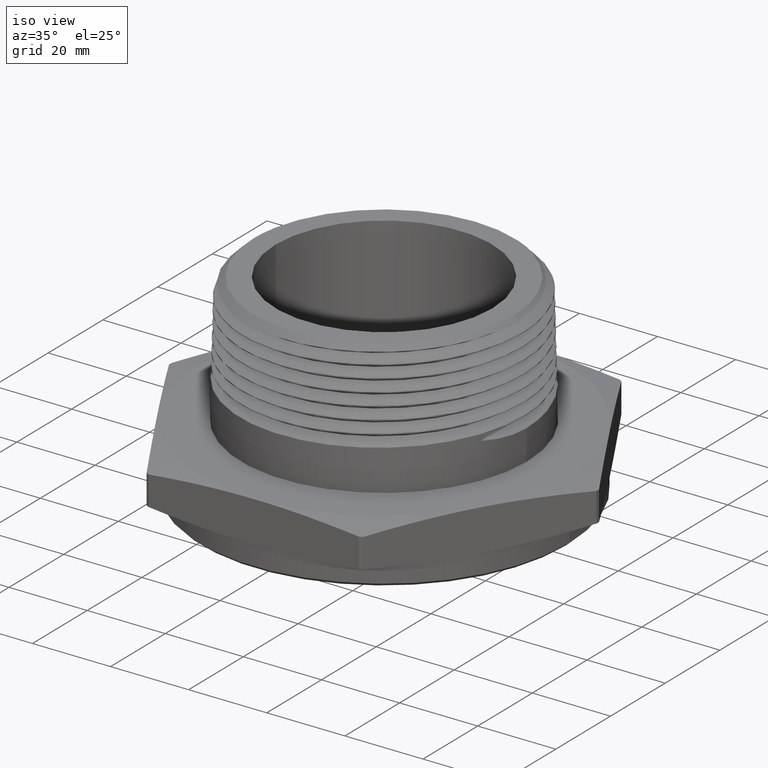
[diagram: clean part render]
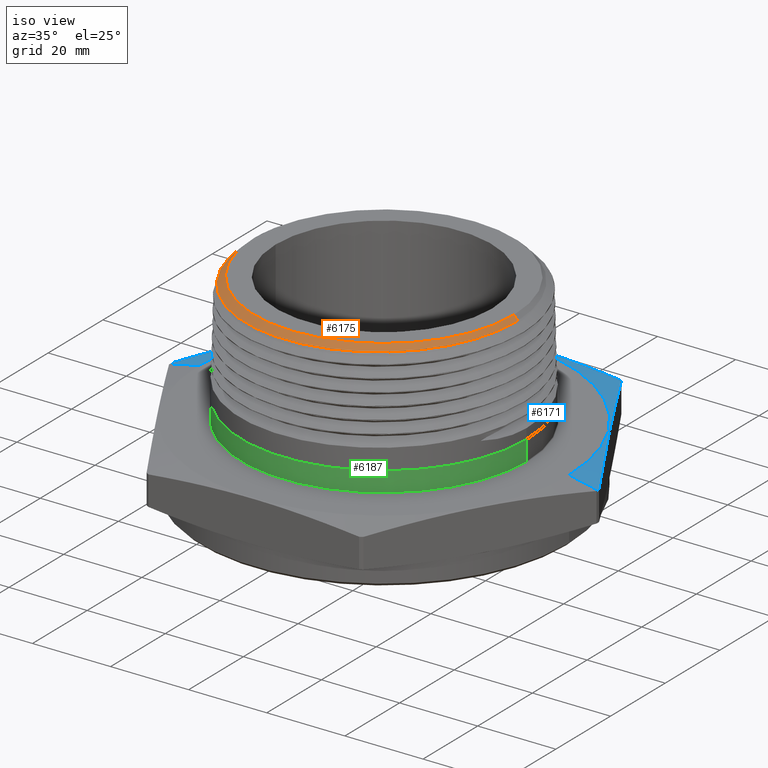
[diagram: same view with three faces highlighted in distinct colors, each labeled with its STEP entity id]
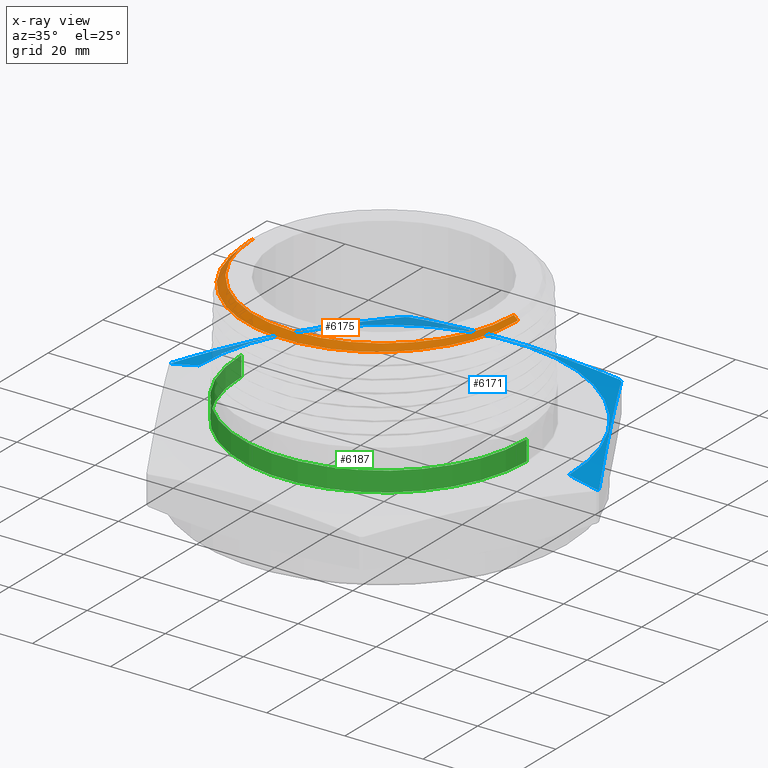
[diagram: x-ray of the same camera — body ghosted, the three highlighted faces saturated]
A machine part, iso view with three faces highlighted in distinct colors.
The next image is the same camera in x-ray (body ghosted, the three faces saturated) — at least one of them is partly hidden behind the body in this view.
Their STEP definitions:

[orange] entity #6175 — the highlighted conical surface has half-angle 45 deg.
#743 = VERTEX_POINT ( 'NONE', #1932 ) ;
#829 = B_SPLINE_CURVE_WITH_KNOTS ( 'NONE', 3,
 ( #6487, #6489, #5280, #5281, #5282, #5283, #5284, #5285, #5286, #5287, #5288, #5289, #5290, #5291, #5292, #5293, #5294, #5295, #5296, #5297, #5298, #5299, #5300, #5301, #5302, #5303, #5304, #5305, #5306, #5307, #5308, #5309, #5310, #5311, #5312, #5313, #5314, #5315, #5316, #5317, #5318, #5319, #5320, #5321, #5322, #5323, #5324, #5325, #5326, #5327, #5328, #5329, #5330, #5331, #5332, #5333, #5334, #5335, #5336, #5337, #5338, #5339, #5340, #5341, #5342, #5343, #5344, #5345 ),
 .UNSPECIFIED., .F., .F.,
 ( 4, 2, 2, 2, 2, 2, 2, 2, 2, 2, 2, 2, 2, 2, 2, 2, 2, 2, 2, 2, 2, 2, 2, 2, 2, 2, 2, 2, 2, 2, 2, 2, 2, 4 ),
 ( 0.05902998392679064500, 0.06246717431900992300, 0.06590436471122920700, 0.06934155510344847100, 0.07106015029955811700, 0.07277874549566774900, 0.07965312628010630400, 0.08137172147621593600, 0.08309031667232558100, 0.08652750706454483100, 0.09340188784898338600, 0.09512048304509301800, 0.09683907824120265000, 0.1002762686334219300, 0.1037134590256411900, 0.1054320542217508400, 0.1071506494178604600, 0.1140250302022990100, 0.1174622205945182700, 0.1191808157906278900, 0.1208994109867375400, 0.1277737917711760700, 0.1294923869672857100, 0.1312109821633953600, 0.1346481725556146200, 0.1415225533400531800, 0.1432411485361628200, 0.1449597437322724700, 0.1483969341244917300, 0.1518341245167109900, 0.1552713149089302600, 0.1621456956933688100, 0.1655828860855880500, 0.1690200764778073400 ),
 .UNSPECIFIED. ) ;
#830 = B_SPLINE_CURVE_WITH_KNOTS ( 'NONE', 3,
 ( #5346, #5349, #5350, #5351 ),
 .UNSPECIFIED., .F., .F.,
 ( 4, 4 ),
 ( 4.049752731053163400E-017, 0.005450625266921482100 ),
 .UNSPECIFIED. ) ;
#1410 = CARTESIAN_POINT ( 'NONE',  ( 1.543675872082448200, 1.890457715666769000E-016, 1.496089127917554300 ) ) ;
#1411 = DIRECTION ( 'NONE',  ( 0.7071067811865512400, 8.659560562354978500E-017, -0.7071067811865438000 ) ) ;
#1415 = CARTESIAN_POINT ( 'NONE',  ( -1.311341127017492200, -0.07127014641024455300, 1.728423872982507900 ) ) ;
#1419 = CARTESIAN_POINT ( 'NONE',  ( -1.311368873181038200, -1.536664496436148200E-016, 1.728396126818961800 ) ) ;
#1422 = CARTESIAN_POINT ( 'NONE',  ( -1.305487503946313400, -0.1425690853686925300, 1.728457413659185500 ) ) ;
#1423 = CARTESIAN_POINT ( 'NONE',  ( -1.293868333705549400, -0.2130032852517474400, 1.728481024465422300 ) ) ;
#1426 = DIRECTION ( 'NONE',  ( -0.7071067811865512400, 0.0000000000000000000, -0.7071067811865438000 ) ) ;
#1431 = CARTESIAN_POINT ( 'NONE',  ( -1.543675872082448200, 0.0000000000000000000, 1.496089127917554300 ) ) ;
#1441 = CARTESIAN_POINT ( 'NONE',  ( 0.0000000000000000000, 0.0000000000000000000, 1.729999999999999800 ) ) ;
#1442 = DIRECTION ( 'NONE',  ( -0.0000000000000000000, -0.0000000000000000000, -1.000000000000000000 ) ) ;
#1443 = DIRECTION ( 'NONE',  ( -1.000000000000000000, 0.0000000000000000000, 0.0000000000000000000 ) ) ;
#1511 = CARTESIAN_POINT ( 'NONE',  ( 1.309765000000000100, 1.653900943077713700E-016, 1.729999999999999800 ) ) ;
#1516 = CARTESIAN_POINT ( 'NONE',  ( -1.293868333705549400, -0.2130032852517474400, 1.728481024465422300 ) ) ;
#1517 = CARTESIAN_POINT ( 'NONE',  ( -1.309765000000000100, 0.0000000000000000000, 1.729999999999999800 ) ) ;
#1551 = CARTESIAN_POINT ( 'NONE',  ( 1.350563691224693400, 3.244069492476312400E-016, 1.689201308775306200 ) ) ;
#1932 = CARTESIAN_POINT ( 'NONE',  ( -1.311368873181038200, -1.536664496436148200E-016, 1.728396126818961800 ) ) ;
#1977 = LINE ( 'NONE', #5279, #1979 ) ;
#1979 = VECTOR ( 'NONE', #5278, 39.37007874015748100 ) ;
#2051 = LINE ( 'NONE', #1410, #2053 ) ;
#2053 = VECTOR ( 'NONE', #1411, 39.37007874015748100 ) ;
#2061 = LINE ( 'NONE', #1431, #2063 ) ;
#2063 = VECTOR ( 'NONE', #1426, 39.37007874015748100 ) ;
#2064 = CIRCLE ( 'NONE', #5657, 1.309765000000000100 ) ;
#2650 = FACE_OUTER_BOUND ( 'NONE', #6842, .T. ) ;
#2657 = CONICAL_SURFACE ( 'NONE', #5577, 1.543675872082448200, 0.7853981633974536100 ) ;
#4867 = VERTEX_POINT ( 'NONE', #6735 ) ;
#4868 = VERTEX_POINT ( 'NONE', #6736 ) ;
#5278 = DIRECTION ( 'NONE',  ( -0.7071067811865512400, 0.0000000000000000000, -0.7071067811865438000 ) ) ;
#5279 = CARTESIAN_POINT ( 'NONE',  ( -1.543675872082448200, 0.0000000000000000000, 1.496089127917554300 ) ) ;
#5280 = CARTESIAN_POINT ( 'NONE',  ( -1.387721829035604600, -0.09044665519323419300, 1.649825558905477100 ) ) ;
#5281 = CARTESIAN_POINT ( 'NONE',  ( -1.378153086283493200, -0.1798469589385528500, 1.650653760550562000 ) ) ;
#5282 = CARTESIAN_POINT ( 'NONE',  ( -1.371226199127554500, -0.2241300008257051400, 1.651064432636748100 ) ) ;
#5283 = CARTESIAN_POINT ( 'NONE',  ( -1.353122640601031300, -0.3118686214614841400, 1.651890136436830800 ) ) ;
#5284 = CARTESIAN_POINT ( 'NONE',  ( -1.341945750210226800, -0.3553241546887012700, 1.652305473547522700 ) ) ;
#5285 = CARTESIAN_POINT ( 'NONE',  ( -1.321939744358964200, -0.4198764975665205700, 1.652929201335512800 ) ) ;
#5286 = CARTESIAN_POINT ( 'NONE',  ( -1.314710758866098500, -0.4413396231853181600, 1.653137845617973100 ) ) ;
#5287 = CARTESIAN_POINT ( 'NONE',  ( -1.299246640085977000, -0.4837865662436233700, 1.653553942386309500 ) ) ;
#5288 = CARTESIAN_POINT ( 'NONE',  ( -1.291026264885725800, -0.5047391586572285100, 1.653761083759974300 ) ) ;
#5289 = CARTESIAN_POINT ( 'NONE',  ( -1.247525987655243400, -0.6081716279879735300, 1.654796930411750900 ) ) ;
#5290 = CARTESIAN_POINT ( 'NONE',  ( -1.205123892175791000, -0.6867006030434359400, 1.655619034298606600 ) ) ;
#5291 = CARTESIAN_POINT ( 'NONE',  ( -1.142669027500451600, -0.7796181956014405200, 1.656654119190884800 ) ) ;
#5292 = CARTESIAN_POINT ( 'NONE',  ( -1.129700608824985000, -0.7979368432874045500, 1.656862279552493700 ) ) ;
#5293 = CARTESIAN_POINT ( 'NONE',  ( -1.102794159378583700, -0.8340362399010008400, 1.657280037986371000 ) ) ;
#5294 = CARTESIAN_POINT ( 'NONE',  ( -1.088816396089312900, -0.8518641257720821500, 1.657490174772445100 ) ) ;
#5295 = CARTESIAN_POINT ( 'NONE',  ( -1.045717970022937800, -0.9041363560018240700, 1.658117845252012400 ) ) ;
#5296 = CARTESIAN_POINT ( 'NONE',  ( -1.015503016456007500, -0.9373139882466530200, 1.658531384144530600 ) ) ;
#5297 = CARTESIAN_POINT ( 'NONE',  ( -0.9205371741397651000, -1.031978224888733500, 1.659773189909072200 ) ) ;
#5298 = CARTESIAN_POINT ( 'NONE',  ( -0.8515078699465396000, -1.088644176189931700, 1.660599383292347600 ) ) ;
#5299 = CARTESIAN_POINT ( 'NONE',  ( -0.7578971347747651700, -1.151224053181517400, 1.661643901281008000 ) ) ;
#5300 = CARTESIAN_POINT ( 'NONE',  ( -0.7387498946063230100, -1.163354886694823100, 1.661854821974321200 ) ) ;
#5301 = CARTESIAN_POINT ( 'NONE',  ( -0.7000278837805296000, -1.186570065322752000, 1.662275247762450300 ) ) ;
#5302 = CARTESIAN_POINT ( 'NONE',  ( -0.6804549385742210100, -1.197658240626131600, 1.662484694941909400 ) ) ;
#5303 = CARTESIAN_POINT ( 'NONE',  ( -0.6211123099322427600, -1.229394004553222300, 1.663110527844584800 ) ) ;
#5304 = CARTESIAN_POINT ( 'NONE',  ( -0.5807204606353515400, -1.248516830354166900, 1.663523951170077900 ) ) ;
#5305 = CARTESIAN_POINT ( 'NONE',  ( -0.4982993944568727100, -1.282749475752895200, 1.664353280016943400 ) ) ;
#5306 = CARTESIAN_POINT ( 'NONE',  ( -0.4562697048021590000, -1.297858105400782100, 1.664770448555606700 ) ) ;
#5307 = CARTESIAN_POINT ( 'NONE',  ( -0.3919822672765918000, -1.317474866540374200, 1.665396708881631000 ) ) ;
#5308 = CARTESIAN_POINT ( 'NONE',  ( -0.3703455784915140000, -1.323505125977710900, 1.665605624429131300 ) ) ;
#5309 = CARTESIAN_POINT ( 'NONE',  ( -0.3266496668449838100, -1.334530049106501300, 1.666024565896827600 ) ) ;
#5310 = CARTESIAN_POINT ( 'NONE',  ( -0.3045309002623418600, -1.339535049554544600, 1.666235152927744800 ) ) ;
#5311 = CARTESIAN_POINT ( 'NONE',  ( -0.1939231631433637200, -1.361704088593232800, 1.667285280778870900 ) ) ;
#5312 = CARTESIAN_POINT ( 'NONE',  ( -0.1050013554721083800, -1.370538356599322800, 1.668116787441824100 ) ) ;
#5313 = CARTESIAN_POINT ( 'NONE',  ( 0.02901599900098430700, -1.370819238169880700, 1.669366572973047400 ) ) ;
#5314 = CARTESIAN_POINT ( 'NONE',  ( 0.07379511447116307600, -1.368732305220951900, 1.669786793038871500 ) ) ;
#5315 = CARTESIAN_POINT ( 'NONE',  ( 0.1411282557002829000, -1.362240277797694300, 1.670419400697314300 ) ) ;
#5316 = CARTESIAN_POINT ( 'NONE',  ( 0.1636457449541972900, -1.359505732146051100, 1.670631153200059500 ) ) ;
#5317 = CARTESIAN_POINT ( 'NONE',  ( 0.2082605675109904200, -1.352963933619914000, 1.671051883773706500 ) ) ;
#5318 = CARTESIAN_POINT ( 'NONE',  ( 0.2304074174881110500, -1.349154188068959700, 1.671261328031110400 ) ) ;
#5319 = CARTESIAN_POINT ( 'NONE',  ( 0.3403516800478649800, -1.327454393807255400, 1.672308376429769300 ) ) ;
#5320 = CARTESIAN_POINT ( 'NONE',  ( 0.4258028158763752500, -1.301690510375755400, 1.673141857543789500 ) ) ;
#5321 = CARTESIAN_POINT ( 'NONE',  ( 0.5294763879868297200, -1.258947449370696000, 1.674191507788595200 ) ) ;
#5322 = CARTESIAN_POINT ( 'NONE',  ( 0.5500524182851402900, -1.249866361530422600, 1.674402677545394000 ) ) ;
#5323 = CARTESIAN_POINT ( 'NONE',  ( 0.5908812834332529700, -1.230619658576099600, 1.674826861395288100 ) ) ;
#5324 = CARTESIAN_POINT ( 'NONE',  ( 0.6111447784805808000, -1.220444190677048000, 1.675039926920598400 ) ) ;
#5325 = CARTESIAN_POINT ( 'NONE',  ( 0.6707701583785139500, -1.188629791773518900, 1.675674227234756500 ) ) ;
#5326 = CARTESIAN_POINT ( 'NONE',  ( 0.7092010631181647800, -1.165603297378965000, 1.676092484723461100 ) ) ;
#5327 = CARTESIAN_POINT ( 'NONE',  ( 0.8206293516606149000, -1.091202300308759600, 1.677349083499454200 ) ) ;
#5328 = CARTESIAN_POINT ( 'NONE',  ( 0.8898017566130015400, -1.034560564492334600, 1.678186767698253400 ) ) ;
#5329 = CARTESIAN_POINT ( 'NONE',  ( 0.9696380457669271400, -0.9546298024918663500, 1.679248357583564600 ) ) ;
#5330 = CARTESIAN_POINT ( 'NONE',  ( 0.9852348774771584300, -0.9382129070840552500, 1.679461820166213900 ) ) ;
#5331 = CARTESIAN_POINT ( 'NONE',  ( 1.015418914105367100, -0.9048208241694952700, 1.679886397615560900 ) ) ;
#5332 = CARTESIAN_POINT ( 'NONE',  ( 1.030047560698469600, -0.8878048922487474800, 1.680098007521708900 ) ) ;
#5333 = CARTESIAN_POINT ( 'NONE',  ( 1.072565351002415600, -0.8358125868606989300, 1.680730630214287000 ) ) ;
#5334 = CARTESIAN_POINT ( 'NONE',  ( 1.099090009909521500, -0.7998942281509167100, 1.681148960154275500 ) ) ;
#5335 = CARTESIAN_POINT ( 'NONE',  ( 1.148523734250067400, -0.7255615774423684900, 1.681989507361252500 ) ) ;
#5336 = CARTESIAN_POINT ( 'NONE',  ( 1.171432098796662900, -0.6871468127884823300, 1.682412697359949400 ) ) ;
#5337 = CARTESIAN_POINT ( 'NONE',  ( 1.213562919861160200, -0.6077727826755338100, 1.683260637718465800 ) ) ;
#5338 = CARTESIAN_POINT ( 'NONE',  ( 1.232853079496149400, -0.5666054633063553100, 1.683687311909806400 ) ) ;
#5339 = CARTESIAN_POINT ( 'NONE',  ( 1.283917452465988900, -0.4417456026258952400, 1.684960172711855900 ) ) ;
#5340 = CARTESIAN_POINT ( 'NONE',  ( 1.309343807456777800, -0.3561608872497297200, 1.685800504923153000 ) ) ;
#5341 = CARTESIAN_POINT ( 'NONE',  ( 1.334717783095752800, -0.2243101566284905500, 1.687070051229979000 ) ) ;
#5342 = CARTESIAN_POINT ( 'NONE',  ( 1.341037897431066600, -0.1796915918156798700, 1.687497994484066700 ) ) ;
#5343 = CARTESIAN_POINT ( 'NONE',  ( 1.349195330125807100, -0.08959822246489143600, 1.688354542739291400 ) ) ;
#5344 = CARTESIAN_POINT ( 'NONE',  ( 1.350987489651167100, -0.04471828386469470900, 1.688777510348832500 ) ) ;
#5345 = CARTESIAN_POINT ( 'NONE',  ( 1.350563691224693400, 3.244069492476312400E-016, 1.689201308775306200 ) ) ;
#5346 = CARTESIAN_POINT ( 'NONE',  ( -1.293868333705549400, -0.2130032852517474400, 1.728481024465422300 ) ) ;
#5349 = CARTESIAN_POINT ( 'NONE',  ( -1.308027092260372100, -0.1426472211811488400, 1.725938862266765100 ) ) ;
#5350 = CARTESIAN_POINT ( 'NONE',  ( -1.316329021951404800, -0.07164274502372786100, 1.723435978048595300 ) ) ;
#5351 = CARTESIAN_POINT ( 'NONE',  ( -1.318848115848336700, -6.606837979511626700E-015, 1.720916884151662900 ) ) ;
#5577 = AXIS2_PLACEMENT_3D ( 'NONE', #5681, #5682, #5680 ) ;
#5657 = AXIS2_PLACEMENT_3D ( 'NONE', #1441, #1442, #1443 ) ;
#5680 = DIRECTION ( 'NONE',  ( -1.000000000000000000, 0.0000000000000000000, 0.0000000000000000000 ) ) ;
#5681 = CARTESIAN_POINT ( 'NONE',  ( 0.0000000000000000000, 0.0000000000000000000, 1.496089127917554300 ) ) ;
#5682 = DIRECTION ( 'NONE',  ( -0.0000000000000000000, -0.0000000000000000000, -1.000000000000000000 ) ) ;
#6175 = ADVANCED_FACE ( 'NONE', ( #2650 ), #2657, .T. ) ;
#6487 = CARTESIAN_POINT ( 'NONE',  ( -1.390774161816868100, -8.057508279864616300E-013, 1.648990838183133100 ) ) ;
#6489 = CARTESIAN_POINT ( 'NONE',  ( -1.390358438698096900, -0.04517222760751470800, 1.649406561301878200 ) ) ;
#6545 = EDGE_CURVE ( 'NONE', #4868, #6873, #829, .T. ) ;
#6546 = EDGE_CURVE ( 'NONE', #4867, #4868, #1977, .T. ) ;
#6547 = EDGE_CURVE ( 'NONE', #6674, #4867, #830, .T. ) ;
#6627 = EDGE_CURVE ( 'NONE', #6677, #6873, #2051, .T. ) ;
#6628 = EDGE_CURVE ( 'NONE', #743, #6674, #6667, .T. ) ;
#6634 = EDGE_CURVE ( 'NONE', #6678, #743, #2061, .T. ) ;
#6636 = EDGE_CURVE ( 'NONE', #6677, #6678, #2064, .T. ) ;
#6667 = B_SPLINE_CURVE_WITH_KNOTS ( 'NONE', 3,
 ( #1419, #1415, #1422, #1423 ),
 .UNSPECIFIED., .F., .F.,
 ( 4, 4 ),
 ( 0.002746248883832942300, 0.008185843059415642500 ),
 .UNSPECIFIED. ) ;
#6674 = VERTEX_POINT ( 'NONE', #1516 ) ;
#6677 = VERTEX_POINT ( 'NONE', #1511 ) ;
#6678 = VERTEX_POINT ( 'NONE', #1517 ) ;
#6735 = CARTESIAN_POINT ( 'NONE',  ( -1.318848115848336700, -6.606837979511626700E-015, 1.720916884151662900 ) ) ;
#6736 = CARTESIAN_POINT ( 'NONE',  ( -1.390774161816868100, -8.057508279864616300E-013, 1.648990838183133100 ) ) ;
#6800 = ORIENTED_EDGE ( 'NONE', *, *, #6627, .F. ) ;
#6801 = ORIENTED_EDGE ( 'NONE', *, *, #6636, .T. ) ;
#6802 = ORIENTED_EDGE ( 'NONE', *, *, #6634, .T. ) ;
#6803 = ORIENTED_EDGE ( 'NONE', *, *, #6628, .T. ) ;
#6804 = ORIENTED_EDGE ( 'NONE', *, *, #6547, .T. ) ;
#6805 = ORIENTED_EDGE ( 'NONE', *, *, #6546, .T. ) ;
#6806 = ORIENTED_EDGE ( 'NONE', *, *, #6545, .T. ) ;
#6842 = EDGE_LOOP ( 'NONE', ( #6800, #6801, #6802, #6803, #6804, #6805, #6806 ) ) ;
#6873 = VERTEX_POINT ( 'NONE', #1551 ) ;

[blue] entity #6171 — the highlighted conical surface has half-angle 78 deg.
#2 = VERTEX_POINT ( 'NONE', #1917 ) ;
#45 = CIRCLE ( 'NONE', #5615, 2.155063509461096600 ) ;
#51 = LINE ( 'NONE', #534, #53 ) ;
#52 = LINE ( 'NONE', #6216, #59 ) ;
#53 = VECTOR ( 'NONE', #498, 39.37007874015748100 ) ;
#54 = CIRCLE ( 'NONE', #5616, 2.155063509461096600 ) ;
#55 = CIRCLE ( 'NONE', #5617, 2.155063509461096600 ) ;
#56 = CIRCLE ( 'NONE', #5618, 2.155063509461096600 ) ;
#57 = CIRCLE ( 'NONE', #5619, 1.865000000000000000 ) ;
#59 = VECTOR ( 'NONE', #6215, 39.37007874015748100 ) ;
#76 = VERTEX_POINT ( 'NONE', #1914 ) ;
#78 = VERTEX_POINT ( 'NONE', #1918 ) ;
#79 = VERTEX_POINT ( 'NONE', #1919 ) ;
#80 = VERTEX_POINT ( 'NONE', #1920 ) ;
#244 = VERTEX_POINT ( 'NONE', #1913 ) ;
#498 = DIRECTION ( 'NONE',  ( -0.9781476007338069100, 0.0000000000000000000, -0.2079116908177528500 ) ) ;
#534 = CARTESIAN_POINT ( 'NONE',  ( -1.865000000000000000, 0.0000000000000000000, 0.4199999999999999800 ) ) ;
#539 = CARTESIAN_POINT ( 'NONE',  ( -2.154992918645594300, 0.01744277495468578300, 0.3583450977630113800 ) ) ;
#540 = CARTESIAN_POINT ( 'NONE',  ( -2.066460370887299300, 0.1707856457955717100, 0.3768988438747940500 ) ) ;
#541 = CARTESIAN_POINT ( 'NONE',  ( 4.497182772172610600E-017, 0.0000000000000000000, 0.3583450977630111000 ) ) ;
#542 = DIRECTION ( 'NONE',  ( -1.254986547952384500E-016, -0.0000000000000000000, -1.000000000000000000 ) ) ;
#543 = DIRECTION ( 'NONE',  ( -1.000000000000000000, 0.0000000000000000000, 1.267641525027445500E-016 ) ) ;
#544 = CARTESIAN_POINT ( 'NONE',  ( -1.977927823129003600, 0.3241285166364571400, 0.3919305004217835700 ) ) ;
#545 = CARTESIAN_POINT ( 'NONE',  ( -1.800862727612413200, 0.6308142583182287900, 0.4124480746447293800 ) ) ;
#546 = CARTESIAN_POINT ( 'NONE',  ( -1.623797632095821600, 0.9375000000000000000, 0.4233007941218703300 ) ) ;
#547 = CARTESIAN_POINT ( 'NONE',  ( -1.446732536579231000, 1.244185741681772300, 0.4124480746447294300 ) ) ;
#548 = CARTESIAN_POINT ( 'NONE',  ( -1.269667441062640500, 1.550871483363543300, 0.3919305004217833500 ) ) ;
#549 = CARTESIAN_POINT ( 'NONE',  ( -1.181134893304345100, 1.704214354204428300, 0.3768988438747939400 ) ) ;
#550 = CARTESIAN_POINT ( 'NONE',  ( -1.092602345546049600, 1.857557225045315000, 0.3583450977630112700 ) ) ;
#551 = CARTESIAN_POINT ( 'NONE',  ( -0.8854626489026766700, 1.875000000000000000, 0.3768844703934901000 ) ) ;
#552 = CARTESIAN_POINT ( 'NONE',  ( -0.7078637763989921200, 1.875000000000000400, 0.3919653201233485600 ) ) ;
#553 = CARTESIAN_POINT ( 'NONE',  ( 4.497182772172610600E-017, 0.0000000000000000000, 0.3583450977630111000 ) ) ;
#554 = DIRECTION ( 'NONE',  ( -1.254986547952384500E-016, -0.0000000000000000000, -1.000000000000000000 ) ) ;
#555 = DIRECTION ( 'NONE',  ( -1.000000000000000000, 0.0000000000000000000, 1.267641525027445500E-016 ) ) ;
#556 = CARTESIAN_POINT ( 'NONE',  ( -1.062390573099543800, 1.875000000000000000, 0.3583450977630112700 ) ) ;
#557 = CARTESIAN_POINT ( 'NONE',  ( -0.3532018081287491800, 1.875000000000000400, 0.4124899777348193800 ) ) ;
#558 = CARTESIAN_POINT ( 'NONE',  ( -0.1759797155870145000, 1.874999999999999800, 0.4178968614425999100 ) ) ;
#559 = CARTESIAN_POINT ( 'NONE',  ( 0.1782209432946992300, 1.874999999999999600, 0.4178518649649166100 ) ) ;
#560 = CARTESIAN_POINT ( 'NONE',  ( 0.3551995481315818900, 1.875000000000000000, 0.4124017013454117600 ) ) ;
#561 = CARTESIAN_POINT ( 'NONE',  ( 0.7089408793083038500, 1.875000000000000400, 0.3918754134823977400 ) ) ;
#562 = CARTESIAN_POINT ( 'NONE',  ( 0.8857049465856076100, 1.875000000000000000, 0.3768590812580453500 ) ) ;
#563 = CARTESIAN_POINT ( 'NONE',  ( 1.062390573099543800, 1.875000000000000000, 0.3583450977630109900 ) ) ;
#564 = CARTESIAN_POINT ( 'NONE',  ( 1.092602345546049400, 1.857557225045314500, 0.3583450977630109900 ) ) ;
#565 = CARTESIAN_POINT ( 'NONE',  ( 1.181134893304344600, 1.704214354204428300, 0.3768988438747935000 ) ) ;
#566 = CARTESIAN_POINT ( 'NONE',  ( 4.497182772172610600E-017, 0.0000000000000000000, 0.3583450977630111000 ) ) ;
#567 = DIRECTION ( 'NONE',  ( -1.254986547952384500E-016, -0.0000000000000000000, -1.000000000000000000 ) ) ;
#568 = DIRECTION ( 'NONE',  ( -1.000000000000000000, 0.0000000000000000000, 1.267641525027445500E-016 ) ) ;
#570 = CARTESIAN_POINT ( 'NONE',  ( 1.269667441062640700, 1.550871483363543300, 0.3919305004217831800 ) ) ;
#571 = CARTESIAN_POINT ( 'NONE',  ( 1.446732536579231000, 1.244185741681771700, 0.4124480746447289300 ) ) ;
#572 = CARTESIAN_POINT ( 'NONE',  ( 1.623797632095821800, 0.9375000000000007800, 0.4233007941218696600 ) ) ;
#819 = B_SPLINE_CURVE_WITH_KNOTS ( 'NONE', 3,
 ( #539, #540, #544, #545, #546, #547, #548, #549, #550 ),
 .UNSPECIFIED., .F., .F.,
 ( 4, 2, 1, 2, 4 ),
 ( 1.908621089976603600E-006, 0.01349426889945418800, 0.02698662917781840000, 0.04047898945618262600, 0.05397134973454684900 ),
 .UNSPECIFIED. ) ;
#820 = B_SPLINE_CURVE_WITH_KNOTS ( 'NONE', 3,
 ( #556, #551, #552, #557, #558, #559, #560, #561, #562, #563 ),
 .UNSPECIFIED., .F., .F.,
 ( 4, 2, 2, 2, 4 ),
 ( 0.04615379191895444700, 0.05969999371754793100, 0.07324619551614142100, 0.08679239731473489800, 0.1003385991133283800 ),
 .UNSPECIFIED. ) ;
#821 = B_SPLINE_CURVE_WITH_KNOTS ( 'NONE', 3,
 ( #564, #565, #570, #571, #572, #6211, #6212, #6213, #6214 ),
 .UNSPECIFIED., .F., .F.,
 ( 4, 2, 1, 2, 4 ),
 ( 1.908621089804224700E-006, 0.01349426889945402000, 0.02698662917781823400, 0.04047898945618245300, 0.05397134973454666800 ),
 .UNSPECIFIED. ) ;
#1204 = EDGE_LOOP ( 'NONE', ( #7871, #7872, #7873, #7874, #7875, #7876, #7877, #7878, #7879, #7880 ) ) ;
#1449 = CARTESIAN_POINT ( 'NONE',  ( 1.865000000000000200, 2.283966280409813700E-016, 0.4199999999999995400 ) ) ;
#1518 = CARTESIAN_POINT ( 'NONE',  ( 1.062390573099543800, 1.875000000000000000, 0.3583450977630109900 ) ) ;
#1520 = CARTESIAN_POINT ( 'NONE',  ( 1.092602345546049400, 1.857557225045314500, 0.3583450977630109900 ) ) ;
#1524 = CARTESIAN_POINT ( 'NONE',  ( -1.062390573099543800, 1.875000000000000000, 0.3583450977630112700 ) ) ;
#1913 = CARTESIAN_POINT ( 'NONE',  ( -1.864999999999999500, 0.0000000000000000000, 0.4199999999999999800 ) ) ;
#1914 = CARTESIAN_POINT ( 'NONE',  ( 2.155063509461096600, 2.639191628820793700E-016, 0.3583450977630108200 ) ) ;
#1917 = CARTESIAN_POINT ( 'NONE',  ( -2.155063509461096600, 0.0000000000000000000, 0.3583450977630113800 ) ) ;
#1918 = CARTESIAN_POINT ( 'NONE',  ( 2.154992918645594300, 0.01744277495468660500, 0.3583450977630108200 ) ) ;
#1919 = CARTESIAN_POINT ( 'NONE',  ( -2.154992918645594300, 0.01744277495468578300, 0.3583450977630113800 ) ) ;
#1920 = CARTESIAN_POINT ( 'NONE',  ( -1.092602345546049600, 1.857557225045315000, 0.3583450977630112700 ) ) ;
#2642 = FACE_OUTER_BOUND ( 'NONE', #1204, .T. ) ;
#2649 = CONICAL_SURFACE ( 'NONE', #5572, 1.865000000000000000, 1.361356816555583600 ) ;
#5572 = AXIS2_PLACEMENT_3D ( 'NONE', #7646, #5669, #5670 ) ;
#5615 = AXIS2_PLACEMENT_3D ( 'NONE', #541, #542, #543 ) ;
#5616 = AXIS2_PLACEMENT_3D ( 'NONE', #553, #554, #555 ) ;
#5617 = AXIS2_PLACEMENT_3D ( 'NONE', #566, #567, #568 ) ;
#5618 = AXIS2_PLACEMENT_3D ( 'NONE', #6217, #6218, #6219 ) ;
#5619 = AXIS2_PLACEMENT_3D ( 'NONE', #6221, #6222, #6223 ) ;
#5669 = DIRECTION ( 'NONE',  ( -1.254986547952384500E-016, -0.0000000000000000000, -1.000000000000000000 ) ) ;
#5670 = DIRECTION ( 'NONE',  ( -1.000000000000000000, 0.0000000000000000000, 1.098598388873028100E-016 ) ) ;
#6171 = ADVANCED_FACE ( 'NONE', ( #2642 ), #2649, .T. ) ;
#6211 = CARTESIAN_POINT ( 'NONE',  ( 1.800862727612413000, 0.6308142583182292400, 0.4124480746447291600 ) ) ;
#6212 = CARTESIAN_POINT ( 'NONE',  ( 1.977927823129003800, 0.3241285166364579200, 0.3919305004217831800 ) ) ;
#6213 = CARTESIAN_POINT ( 'NONE',  ( 2.066460370887299300, 0.1707856457955720400, 0.3768988438747935500 ) ) ;
#6214 = CARTESIAN_POINT ( 'NONE',  ( 2.154992918645594300, 0.01744277495468660500, 0.3583450977630108200 ) ) ;
#6215 = DIRECTION ( 'NONE',  ( 0.9781476007338069100, 1.197885328332319900E-016, -0.2079116908177530700 ) ) ;
#6216 = CARTESIAN_POINT ( 'NONE',  ( 1.865000000000000000, 2.283966280409813700E-016, 0.4199999999999995400 ) ) ;
#6217 = CARTESIAN_POINT ( 'NONE',  ( 4.497182772172610600E-017, 0.0000000000000000000, 0.3583450977630111000 ) ) ;
#6218 = DIRECTION ( 'NONE',  ( -1.254986547952384500E-016, -0.0000000000000000000, -1.000000000000000000 ) ) ;
#6219 = DIRECTION ( 'NONE',  ( -1.000000000000000000, 0.0000000000000000000, 1.267641525027445500E-016 ) ) ;
#6221 = CARTESIAN_POINT ( 'NONE',  ( 5.270943501400011200E-017, 0.0000000000000000000, 0.4199999999999997600 ) ) ;
#6222 = DIRECTION ( 'NONE',  ( -1.254986547952384500E-016, -0.0000000000000000000, -1.000000000000000000 ) ) ;
#6223 = DIRECTION ( 'NONE',  ( -1.000000000000000000, 0.0000000000000000000, 1.098598388873028100E-016 ) ) ;
#6496 = EDGE_CURVE ( 'NONE', #244, #2, #51, .T. ) ;
#6497 = EDGE_CURVE ( 'NONE', #2, #79, #45, .T. ) ;
#6498 = EDGE_CURVE ( 'NONE', #79, #80, #819, .T. ) ;
#6499 = EDGE_CURVE ( 'NONE', #80, #6687, #54, .T. ) ;
#6500 = EDGE_CURVE ( 'NONE', #6687, #6679, #820, .T. ) ;
#6501 = EDGE_CURVE ( 'NONE', #6679, #6682, #55, .T. ) ;
#6502 = EDGE_CURVE ( 'NONE', #6682, #78, #821, .T. ) ;
#6503 = EDGE_CURVE ( 'NONE', #78, #76, #56, .T. ) ;
#6504 = EDGE_CURVE ( 'NONE', #6681, #76, #52, .T. ) ;
#6505 = EDGE_CURVE ( 'NONE', #244, #6681, #57, .T. ) ;
#6679 = VERTEX_POINT ( 'NONE', #1518 ) ;
#6681 = VERTEX_POINT ( 'NONE', #1449 ) ;
#6682 = VERTEX_POINT ( 'NONE', #1520 ) ;
#6687 = VERTEX_POINT ( 'NONE', #1524 ) ;
#7646 = CARTESIAN_POINT ( 'NONE',  ( 5.270943501400011200E-017, 0.0000000000000000000, 0.4199999999999997600 ) ) ;
#7871 = ORIENTED_EDGE ( 'NONE', *, *, #6505, .T. ) ;
#7872 = ORIENTED_EDGE ( 'NONE', *, *, #6504, .T. ) ;
#7873 = ORIENTED_EDGE ( 'NONE', *, *, #6503, .F. ) ;
#7874 = ORIENTED_EDGE ( 'NONE', *, *, #6502, .F. ) ;
#7875 = ORIENTED_EDGE ( 'NONE', *, *, #6501, .F. ) ;
#7876 = ORIENTED_EDGE ( 'NONE', *, *, #6500, .F. ) ;
#7877 = ORIENTED_EDGE ( 'NONE', *, *, #6499, .F. ) ;
#7878 = ORIENTED_EDGE ( 'NONE', *, *, #6498, .F. ) ;
#7879 = ORIENTED_EDGE ( 'NONE', *, *, #6497, .F. ) ;
#7880 = ORIENTED_EDGE ( 'NONE', *, *, #6496, .F. ) ;

[green] entity #6187 — the highlighted cylindrical surface (partial cylindrical patch) has radius 36.5125 mm, axis along (-0, -0, -1).
#8 = CYLINDRICAL_SURFACE ( 'NONE', #5592, 1.437500000000000000 ) ;
#239 = VERTEX_POINT ( 'NONE', #1924 ) ;
#243 = VERTEX_POINT ( 'NONE', #1926 ) ;
#1269 = ORIENTED_EDGE ( 'NONE', *, *, #6632, .F. ) ;
#1270 = ORIENTED_EDGE ( 'NONE', *, *, #6579, .F. ) ;
#1271 = ORIENTED_EDGE ( 'NONE', *, *, #6631, .T. ) ;
#1272 = ORIENTED_EDGE ( 'NONE', *, *, #6532, .T. ) ;
#1420 = CARTESIAN_POINT ( 'NONE',  ( -1.437500000000000000, 0.0000000000000000000, 1.729999999999999800 ) ) ;
#1421 = DIRECTION ( 'NONE',  ( -0.0000000000000000000, -0.0000000000000000000, -1.000000000000000000 ) ) ;
#1430 = CARTESIAN_POINT ( 'NONE',  ( 1.437500000000000000, 1.760429773774320200E-016, 1.729999999999999800 ) ) ;
#1432 = DIRECTION ( 'NONE',  ( -0.0000000000000000000, -0.0000000000000000000, -1.000000000000000000 ) ) ;
#1924 = CARTESIAN_POINT ( 'NONE',  ( -1.437500000000000000, 0.0000000000000000000, 0.4300000000000000500 ) ) ;
#1926 = CARTESIAN_POINT ( 'NONE',  ( 1.437500000000000000, 1.760429773774320200E-016, 0.4300000000000000500 ) ) ;
#1961 = CIRCLE ( 'NONE', #5636, 1.437500000000000000 ) ;
#1998 = CIRCLE ( 'NONE', #5638, 1.437500000000000000 ) ;
#2056 = LINE ( 'NONE', #1420, #2058 ) ;
#2057 = LINE ( 'NONE', #1430, #2060 ) ;
#2058 = VECTOR ( 'NONE', #1421, 39.37007874015748100 ) ;
#2060 = VECTOR ( 'NONE', #1432, 39.37007874015748100 ) ;
#2097 = EDGE_LOOP ( 'NONE', ( #1269, #1270, #1271, #1272 ) ) ;
#2105 = VERTEX_POINT ( 'NONE', #2108 ) ;
#2106 = VERTEX_POINT ( 'NONE', #2109 ) ;
#2108 = CARTESIAN_POINT ( 'NONE',  ( 1.437500000000000000, 1.760429773774320200E-016, 0.6297337689372655100 ) ) ;
#2109 = CARTESIAN_POINT ( 'NONE',  ( -1.437500000000000000, 0.0000000000000000000, 0.6297337689372655100 ) ) ;
#2652 = FACE_OUTER_BOUND ( 'NONE', #2097, .T. ) ;
#5592 = AXIS2_PLACEMENT_3D ( 'NONE', #5717, #5718, #5716 ) ;
#5636 = AXIS2_PLACEMENT_3D ( 'NONE', #6315, #6316, #6317 ) ;
#5638 = AXIS2_PLACEMENT_3D ( 'NONE', #7126, #7127, #7128 ) ;
#5716 = DIRECTION ( 'NONE',  ( -1.000000000000000000, 0.0000000000000000000, 0.0000000000000000000 ) ) ;
#5717 = CARTESIAN_POINT ( 'NONE',  ( 0.0000000000000000000, 0.0000000000000000000, 1.729999999999999800 ) ) ;
#5718 = DIRECTION ( 'NONE',  ( -0.0000000000000000000, -0.0000000000000000000, -1.000000000000000000 ) ) ;
#6187 = ADVANCED_FACE ( 'NONE', ( #2652 ), #8, .T. ) ;
#6315 = CARTESIAN_POINT ( 'NONE',  ( 0.0000000000000000000, 0.0000000000000000000, 0.4300000000000000500 ) ) ;
#6316 = DIRECTION ( 'NONE',  ( -0.0000000000000000000, 0.0000000000000000000, 1.000000000000000000 ) ) ;
#6317 = DIRECTION ( 'NONE',  ( 1.000000000000000000, 0.0000000000000000000, 0.0000000000000000000 ) ) ;
#6532 = EDGE_CURVE ( 'NONE', #239, #243, #1961, .T. ) ;
#6579 = EDGE_CURVE ( 'NONE', #2106, #2105, #1998, .T. ) ;
#6631 = EDGE_CURVE ( 'NONE', #2106, #239, #2056, .T. ) ;
#6632 = EDGE_CURVE ( 'NONE', #2105, #243, #2057, .T. ) ;
#7126 = CARTESIAN_POINT ( 'NONE',  ( 0.0000000000000000000, 0.0000000000000000000, 0.6297337689372655100 ) ) ;
#7127 = DIRECTION ( 'NONE',  ( 0.0000000000000000000, 0.0000000000000000000, 1.000000000000000000 ) ) ;
#7128 = DIRECTION ( 'NONE',  ( -1.000000000000000000, 0.0000000000000000000, 0.0000000000000000000 ) ) ;